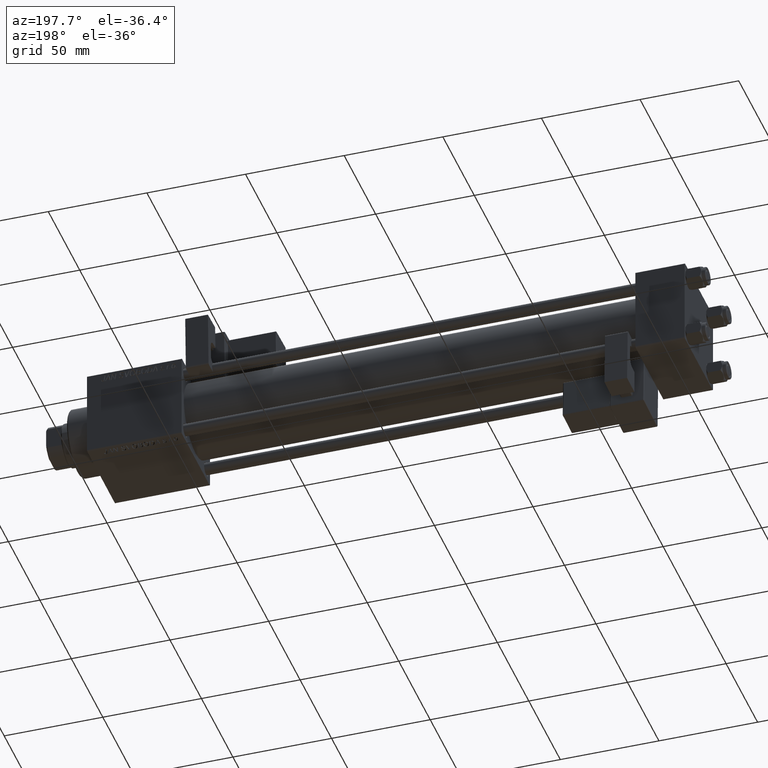
[diagram: clean part render]
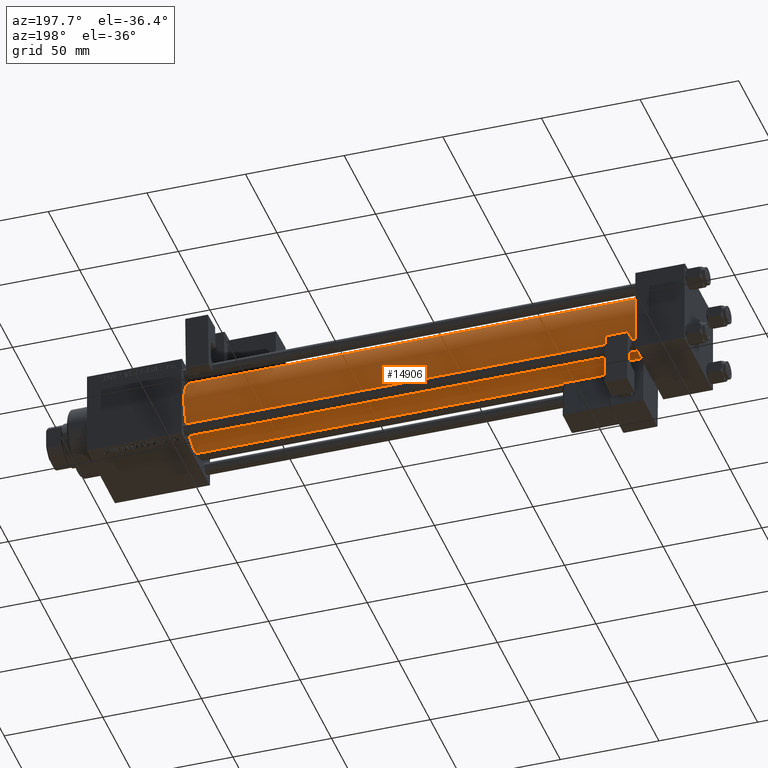
[diagram: same view with one face highlighted and labeled with its STEP entity id]
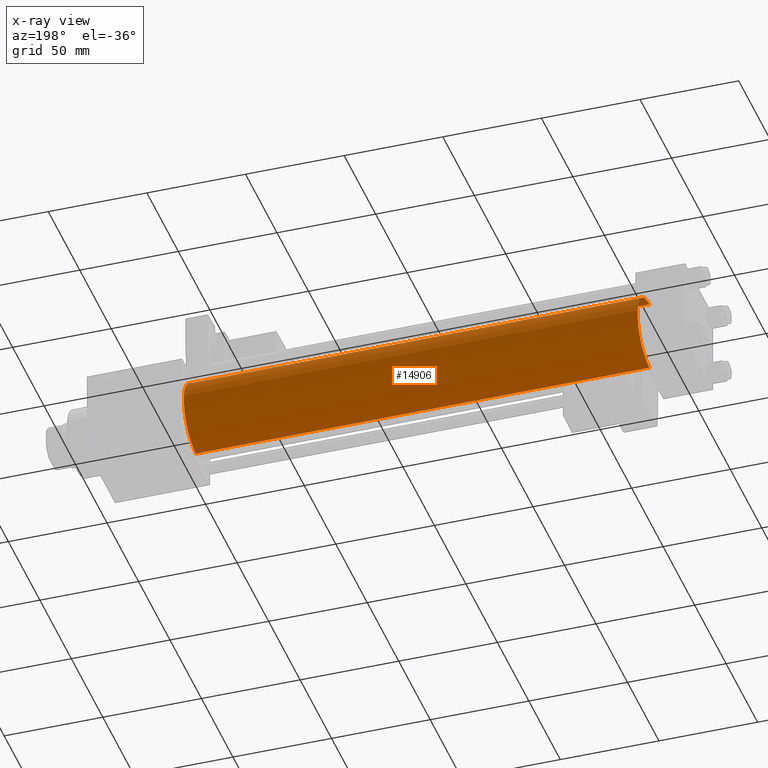
[diagram: x-ray of the same camera — body ghosted, the highlighted face saturated]
A machine part, auxiliary view. The second image highlights one B-rep face of the part: STEP entity #14906.
The next image is the same camera in x-ray: the body ghosted, the highlighted face saturated — about 0% of this face is hidden behind the body in this view.
In plain terms, the highlighted cylindrical surface (partial cylindrical patch) has radius 19 mm, axis along (-1, -0, -0).
Its self-contained STEP definition (entity closure, byte-faithful):
#1162 = DIRECTION ( 'NONE',  ( -1.000000000000000000, -0.000000000000000000, -0.000000000000000000 ) ) ;
#1399 = CIRCLE ( 'NONE', #31762, 19.00000000000000000 ) ;
#2383 = DIRECTION ( 'NONE',  ( 1.000000000000000000, 0.000000000000000000, 0.000000000000000000 ) ) ;
#2661 = CARTESIAN_POINT ( 'NONE',  ( 255.0000000000000000, -2.602085213965210642E-15, 19.00000000000000000 ) ) ;
#4150 = VECTOR ( 'NONE', #32828, 1000.000000000000000 ) ;
#7782 = DIRECTION ( 'NONE',  ( 0.000000000000000000, 0.000000000000000000, 1.000000000000000000 ) ) ;
#7851 = CYLINDRICAL_SURFACE ( 'NONE', #52747, 19.00000000000000000 ) ;
#8125 = CARTESIAN_POINT ( 'NONE',  ( 255.0000000000000000, -2.602085213965210642E-15, 0.000000000000000000 ) ) ;
#10334 = ORIENTED_EDGE ( 'NONE', *, *, #39496, .F. ) ;
#11650 = DIRECTION ( 'NONE',  ( 0.000000000000000000, 0.000000000000000000, 1.000000000000000000 ) ) ;
#11799 = VERTEX_POINT ( 'NONE', #27826 ) ;
#14469 = EDGE_CURVE ( 'NONE', #11799, #29855, #33662, .T. ) ;
#14906 = ADVANCED_FACE ( 'NONE', ( #44840 ), #7851, .T. ) ;
#15112 = DIRECTION ( 'NONE',  ( 1.000000000000000000, -0.000000000000000000, 0.000000000000000000 ) ) ;
#15919 = CARTESIAN_POINT ( 'NONE',  ( 24.99999999999999289, -2.602085213965210642E-15, 0.000000000000000000 ) ) ;
#17985 = AXIS2_PLACEMENT_3D ( 'NONE', #39656, #2383, #18952 ) ;
#18392 = EDGE_CURVE ( 'NONE', #11799, #40443, #36913, .T. ) ;
#18952 = DIRECTION ( 'NONE',  ( 0.000000000000000000, 0.000000000000000000, -1.000000000000000000 ) ) ;
#19191 = CARTESIAN_POINT ( 'NONE',  ( 255.0000000000000000, -2.752562955852396712E-16, -19.00000000000000000 ) ) ;
#20059 = DIRECTION ( 'NONE',  ( -1.000000000000000000, -0.000000000000000000, -0.000000000000000000 ) ) ;
#25811 = EDGE_LOOP ( 'NONE', ( #31200, #45243, #42591, #10334 ) ) ;
#27826 = CARTESIAN_POINT ( 'NONE',  ( 255.0000000000000000, -2.752562955852396712E-16, -19.00000000000000000 ) ) ;
#29855 = VERTEX_POINT ( 'NONE', #2661 ) ;
#30009 = VECTOR ( 'NONE', #1162, 1000.000000000000000 ) ;
#31200 = ORIENTED_EDGE ( 'NONE', *, *, #14469, .F. ) ;
#31762 = AXIS2_PLACEMENT_3D ( 'NONE', #15919, #15112, #7782 ) ;
#32828 = DIRECTION ( 'NONE',  ( -1.000000000000000000, -0.000000000000000000, -0.000000000000000000 ) ) ;
#33662 = CIRCLE ( 'NONE', #17985, 19.00000000000000000 ) ;
#33664 = CARTESIAN_POINT ( 'NONE',  ( 24.99999999999999289, -2.752562955852396712E-16, -19.00000000000000000 ) ) ;
#33793 = LINE ( 'NONE', #38418, #30009 ) ;
#36523 = EDGE_CURVE ( 'NONE', #40443, #47083, #1399, .T. ) ;
#36913 = LINE ( 'NONE', #19191, #4150 ) ;
#38418 = CARTESIAN_POINT ( 'NONE',  ( 255.0000000000000000, -2.602085213965210642E-15, 19.00000000000000000 ) ) ;
#39496 = EDGE_CURVE ( 'NONE', #29855, #47083, #33793, .T. ) ;
#39656 = CARTESIAN_POINT ( 'NONE',  ( 255.0000000000000000, -2.602085213965210642E-15, 0.000000000000000000 ) ) ;
#40443 = VERTEX_POINT ( 'NONE', #33664 ) ;
#40612 = CARTESIAN_POINT ( 'NONE',  ( 24.99999999999999289, -2.602085213965210642E-15, 19.00000000000000000 ) ) ;
#42591 = ORIENTED_EDGE ( 'NONE', *, *, #36523, .T. ) ;
#44840 = FACE_OUTER_BOUND ( 'NONE', #25811, .T. ) ;
#45243 = ORIENTED_EDGE ( 'NONE', *, *, #18392, .T. ) ;
#47083 = VERTEX_POINT ( 'NONE', #40612 ) ;
#52747 = AXIS2_PLACEMENT_3D ( 'NONE', #8125, #20059, #11650 ) ;